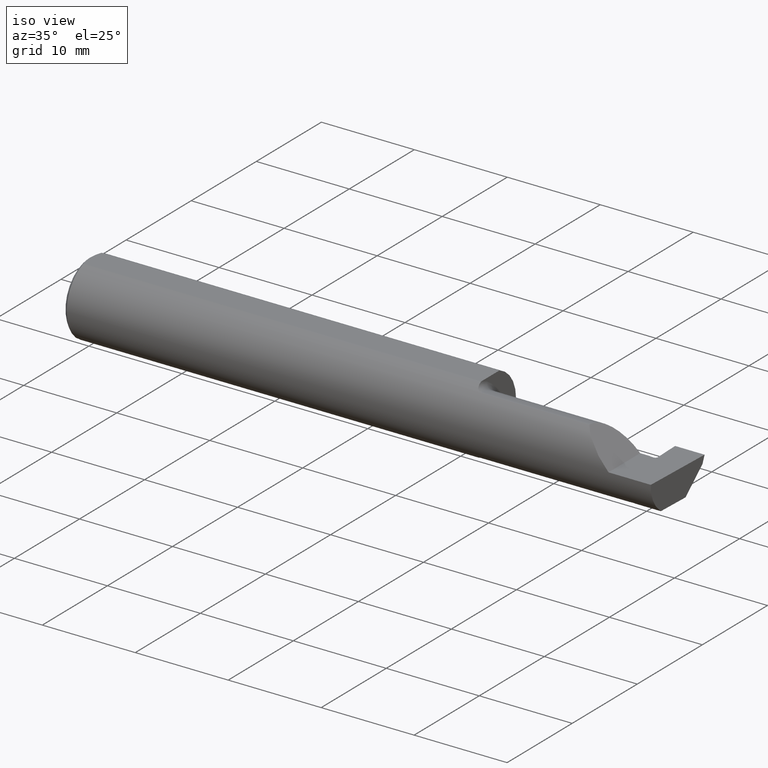
[diagram: clean part render]
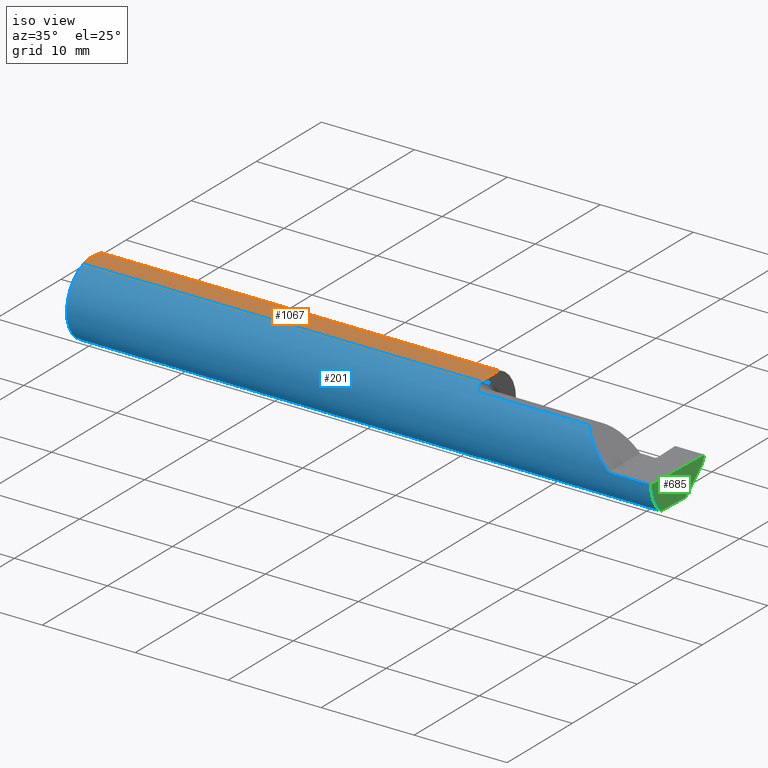
[diagram: same view with three faces highlighted in distinct colors, each labeled with its STEP entity id]
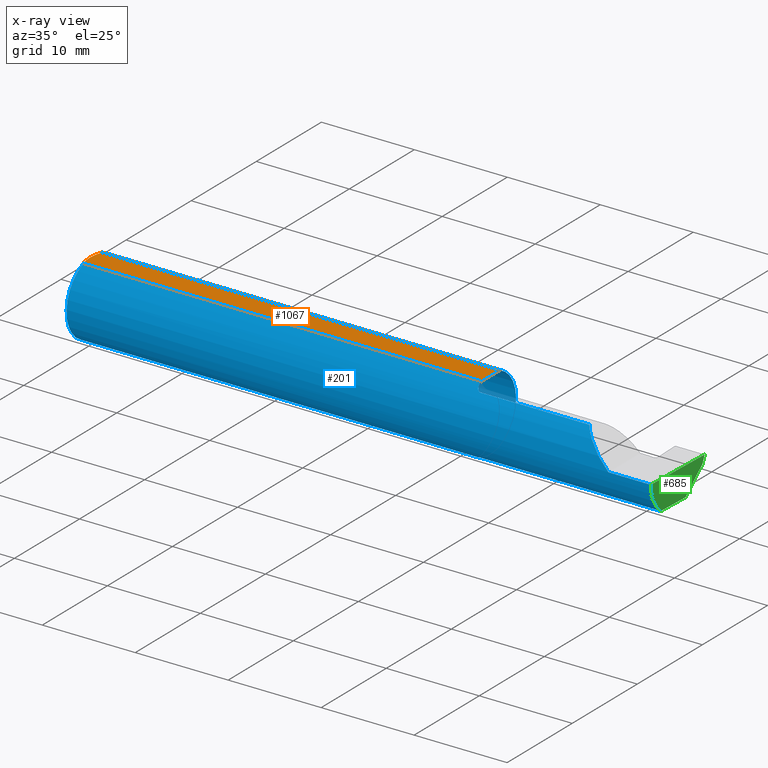
[diagram: x-ray of the same camera — body ghosted, the three highlighted faces saturated]
A machine part, iso view with three faces highlighted in distinct colors.
The next image is the same camera in x-ray (body ghosted, the three faces saturated) — at least one of them is partly hidden behind the body in this view.
Their STEP definitions:

[orange] entity #1067 — the highlighted planar face has unit normal (0, -0, 1).
#20 = DIRECTION ( 'NONE',  ( 1.000000000000000000, 0.000000000000000000, 0.000000000000000000 ) ) ;
#54 = EDGE_CURVE ( 'NONE', #752, #766, #463, .T. ) ;
#61 = DIRECTION ( 'NONE',  ( 0.000000000000000000, -0.000000000000000000, 1.000000000000000000 ) ) ;
#70 = CARTESIAN_POINT ( 'NONE',  ( 0.01499999999999999944, -0.05497272050753900657, 0.1460999999999999799 ) ) ;
#133 = EDGE_CURVE ( 'NONE', #995, #373, #276, .T. ) ;
#141 = CARTESIAN_POINT ( 'NONE',  ( 0.01499999999999999771, 0.05497272050753900657, 0.1460999999999999799 ) ) ;
#147 = B_SPLINE_CURVE_WITH_KNOTS ( 'NONE', 3,
 ( #141, #326, #396, #661, #666, #909 ),
 .UNSPECIFIED., .F., .F.,
 ( 4, 2, 4 ),
 ( 0.003294562426666346362, 0.003999440028384116178, 0.004704317630101885993 ),
 .UNSPECIFIED. ) ;
#149 = CARTESIAN_POINT ( 'NONE',  ( 1.699999999999999956, -0.05497272050753899270, 0.1460999999999999799 ) ) ;
#218 = EDGE_CURVE ( 'NONE', #647, #995, #147, .T. ) ;
#250 = DIRECTION ( 'NONE',  ( -1.000000000000000000, -0.000000000000000000, -0.000000000000000000 ) ) ;
#261 = CARTESIAN_POINT ( 'NONE',  ( 0.004999999999999897755, -0.009384304010803548590, 0.1460999999999999521 ) ) ;
#276 = B_SPLINE_CURVE_WITH_KNOTS ( 'NONE', 3,
 ( #1019, #261, #427, #1086, #594, #1010 ),
 .UNSPECIFIED., .F., .F.,
 ( 4, 2, 4 ),
 ( 0.004704317630101885993, 0.005408659995628783967, 0.006113002361155681942 ),
 .UNSPECIFIED. ) ;
#288 = ORIENTED_EDGE ( 'NONE', *, *, #481, .T. ) ;
#313 = DIRECTION ( 'NONE',  ( -0.000000000000000000, 1.000000000000000000, 0.000000000000000000 ) ) ;
#323 = VECTOR ( 'NONE', #313, 39.37007874015748143 ) ;
#326 = CARTESIAN_POINT ( 'NONE',  ( 0.01187749995209270472, 0.04610609988228752537, 0.1460999999999999799 ) ) ;
#339 = CARTESIAN_POINT ( 'NONE',  ( 1.699999999999999956, 0.05497272050753900657, 0.1460999999999999799 ) ) ;
#360 = EDGE_CURVE ( 'NONE', #766, #647, #834, .T. ) ;
#370 = VECTOR ( 'NONE', #250, 39.37007874015748143 ) ;
#373 = VERTEX_POINT ( 'NONE', #70 ) ;
#396 = CARTESIAN_POINT ( 'NONE',  ( 0.009371209226503902576, 0.03711161584255317364, 0.1461000000000000076 ) ) ;
#427 = CARTESIAN_POINT ( 'NONE',  ( 0.005910707775482238607, -0.01866948012536270504, 0.1461000000000000076 ) ) ;
#438 = ORIENTED_EDGE ( 'NONE', *, *, #133, .T. ) ;
#463 = LINE ( 'NONE', #801, #323 ) ;
#477 = CARTESIAN_POINT ( 'NONE',  ( 2.500000000000000000, -0.1561000000000000165, 0.1460999999999999799 ) ) ;
#481 = EDGE_CURVE ( 'NONE', #373, #752, #521, .T. ) ;
#500 = CARTESIAN_POINT ( 'NONE',  ( 0.000000000000000000, 0.05497272050753900657, 0.1460999999999999799 ) ) ;
#521 = LINE ( 'NONE', #768, #535 ) ;
#535 = VECTOR ( 'NONE', #20, 39.37007874015748143 ) ;
#543 = ORIENTED_EDGE ( 'NONE', *, *, #218, .T. ) ;
#554 = ORIENTED_EDGE ( 'NONE', *, *, #54, .T. ) ;
#562 = DIRECTION ( 'NONE',  ( 1.000000000000000000, 0.000000000000000000, -0.000000000000000000 ) ) ;
#594 = CARTESIAN_POINT ( 'NONE',  ( 0.01190375560897317594, -0.04618065518901644934, 0.1460999999999999799 ) ) ;
#638 = CARTESIAN_POINT ( 'NONE',  ( 0.004999999999999936787, 2.057148927093534050E-17, 0.1460999999999999799 ) ) ;
#647 = VERTEX_POINT ( 'NONE', #1089 ) ;
#661 = CARTESIAN_POINT ( 'NONE',  ( 0.005929349363808920914, 0.01879672308419500643, 0.1460999999999999799 ) ) ;
#666 = CARTESIAN_POINT ( 'NONE',  ( 0.004999999999999902960, 0.009391435229055663386, 0.1460999999999999799 ) ) ;
#752 = VERTEX_POINT ( 'NONE', #149 ) ;
#766 = VERTEX_POINT ( 'NONE', #339 ) ;
#768 = CARTESIAN_POINT ( 'NONE',  ( 0.000000000000000000, -0.05497272050753900657, 0.1460999999999999799 ) ) ;
#783 = AXIS2_PLACEMENT_3D ( 'NONE', #477, #61, #562 ) ;
#801 = CARTESIAN_POINT ( 'NONE',  ( 1.699999999999999956, -0.1561000000000000165, 0.1460999999999999799 ) ) ;
#817 = PLANE ( 'NONE',  #783 ) ;
#834 = LINE ( 'NONE', #500, #370 ) ;
#894 = ORIENTED_EDGE ( 'NONE', *, *, #360, .T. ) ;
#899 = FACE_OUTER_BOUND ( 'NONE', #963, .T. ) ;
#909 = CARTESIAN_POINT ( 'NONE',  ( 0.004999999999999936787, 2.057148927093534050E-17, 0.1460999999999999799 ) ) ;
#963 = EDGE_LOOP ( 'NONE', ( #288, #554, #894, #543, #438 ) ) ;
#995 = VERTEX_POINT ( 'NONE', #638 ) ;
#1010 = CARTESIAN_POINT ( 'NONE',  ( 0.01499999999999999944, -0.05497272050753900657, 0.1460999999999999799 ) ) ;
#1019 = CARTESIAN_POINT ( 'NONE',  ( 0.004999999999999936787, 2.057148927093534050E-17, 0.1460999999999999799 ) ) ;
#1067 = ADVANCED_FACE ( 'NONE', ( #899 ), #817, .T. ) ;
#1086 = CARTESIAN_POINT ( 'NONE',  ( 0.009356849677355947789, -0.03706298561014172849, 0.1460999999999999799 ) ) ;
#1089 = CARTESIAN_POINT ( 'NONE',  ( 0.01499999999999999771, 0.05497272050753900657, 0.1460999999999999799 ) ) ;

[blue] entity #201 — the highlighted cylindrical surface (partial cylindrical patch) has radius 3.9649 mm, axis along (-1, -0, -0).
#6 = CIRCLE ( 'NONE', #791, 0.1560999999999999888 ) ;
#8 = VERTEX_POINT ( 'NONE', #822 ) ;
#9 = DIRECTION ( 'NONE',  ( 1.000000000000000000, 0.000000000000000000, 0.000000000000000000 ) ) ;
#14 = DIRECTION ( 'NONE',  ( 1.000000000000000000, 0.000000000000000000, 0.000000000000000000 ) ) ;
#19 = CARTESIAN_POINT ( 'NONE',  ( 2.379446652605792245, -0.09360841750841730757, -0.1249186702281520484 ) ) ;
#20 = DIRECTION ( 'NONE',  ( 1.000000000000000000, 0.000000000000000000, 0.000000000000000000 ) ) ;
#21 = EDGE_CURVE ( 'NONE', #647, #307, #92, .T. ) ;
#23 = CARTESIAN_POINT ( 'NONE',  ( 2.374392721652005989, -0.09642141776642983164, -0.1227604424825125412 ) ) ;
#29 = CARTESIAN_POINT ( 'NONE',  ( 1.724999999999999867, -0.09360841750841744635, -0.1249186702281520206 ) ) ;
#52 = CARTESIAN_POINT ( 'NONE',  ( 2.488083711217045302, -0.09360841750841747411, -0.1249186702281520206 ) ) ;
#59 =( BOUNDED_CURVE ( )  B_SPLINE_CURVE ( 3, ( #861, #614, #607, #93 ),
 .UNSPECIFIED., .F., .F. ) 
 B_SPLINE_CURVE_WITH_KNOTS ( ( 4, 4 ),
 ( 4.712388980384689674, 5.640097190903853530 ),
 .UNSPECIFIED. ) 
 CURVE ( )  GEOMETRIC_REPRESENTATION_ITEM ( )  RATIONAL_B_SPLINE_CURVE ( ( 1.000000000000000000, 0.9295565493311498395, 0.9295565493311498395, 1.000000000000000000 ) ) 
 REPRESENTATION_ITEM ( '' )  );
#70 = CARTESIAN_POINT ( 'NONE',  ( 0.01499999999999999944, -0.05497272050753900657, 0.1460999999999999799 ) ) ;
#72 = VERTEX_POINT ( 'NONE', #379 ) ;
#73 = CARTESIAN_POINT ( 'NONE',  ( 2.489174561457560220, -0.1560999999999999888, 0.000000000000000000 ) ) ;
#83 = EDGE_CURVE ( 'NONE', #268, #734, #1087, .T. ) ;
#89 = B_SPLINE_CURVE_WITH_KNOTS ( 'NONE', 3,
 ( #19, #103, #597, #771, #23, #108 ),
 .UNSPECIFIED., .F., .F.,
 ( 4, 2, 4 ),
 ( 0.0003747943054115318020, 0.0004686591617424379244, 0.0005625240180733440468 ),
 .UNSPECIFIED. ) ;
#90 = ORIENTED_EDGE ( 'NONE', *, *, #493, .T. ) ;
#92 = CIRCLE ( 'NONE', #110, 0.1560999999999999888 ) ;
#93 = CARTESIAN_POINT ( 'NONE',  ( 2.185081329771848768, -0.09360841750841755737, 0.1249186702281519651 ) ) ;
#94 = CARTESIAN_POINT ( 'NONE',  ( 1.708312875394041974, -0.08466547365232431066, -0.1311808389156052246 ) ) ;
#102 = ORIENTED_EDGE ( 'NONE', *, *, #182, .F. ) ;
#103 = CARTESIAN_POINT ( 'NONE',  ( 2.378688910870780493, -0.09440078289830174108, -0.1243249073414868927 ) ) ;
#106 = CARTESIAN_POINT ( 'NONE',  ( 1.700847904676645150, -0.06780574120017837658, -0.1407631332654325218 ) ) ;
#108 = CARTESIAN_POINT ( 'NONE',  ( 2.373123753993312324, -0.09636026207879044847, -0.1228084276102695688 ) ) ;
#110 = AXIS2_PLACEMENT_3D ( 'NONE', #548, #400, #1057 ) ;
#115 = ORIENTED_EDGE ( 'NONE', *, *, #886, .F. ) ;
#117 = B_SPLINE_CURVE_WITH_KNOTS ( 'NONE', 3,
 ( #403, #154, #491, #271 ),
 .UNSPECIFIED., .F., .F.,
 ( 4, 4 ),
 ( 2.762686052850062009E-15, 7.527400343885615847E-05 ),
 .UNSPECIFIED. ) ;
#144 = B_SPLINE_CURVE_WITH_KNOTS ( 'NONE', 3,
 ( #1082, #498, #592, #325, #832, #413, #171, #167 ),
 .UNSPECIFIED., .F., .F.,
 ( 4, 2, 2, 4 ),
 ( 2.042507625484096645E-06, 0.0005263182385139293217, 0.0007884561039581517534, 0.001050593969402373968 ),
 .UNSPECIFIED. ) ;
#148 = ORIENTED_EDGE ( 'NONE', *, *, #765, .F. ) ;
#149 = CARTESIAN_POINT ( 'NONE',  ( 1.699999999999999956, -0.05497272050753899270, 0.1460999999999999799 ) ) ;
#154 = CARTESIAN_POINT ( 'NONE',  ( 2.358845075908522659, -0.09500150499830831152, -0.1238655998294315164 ) ) ;
#165 = VECTOR ( 'NONE', #410, 39.37007874015748143 ) ;
#166 = VERTEX_POINT ( 'NONE', #751 ) ;
#167 = CARTESIAN_POINT ( 'NONE',  ( 1.712810002172223234, -0.08909999999984939689, 0.1281733201569305314 ) ) ;
#169 = EDGE_CURVE ( 'NONE', #734, #319, #847, .T. ) ;
#170 = ORIENTED_EDGE ( 'NONE', *, *, #296, .F. ) ;
#171 = CARTESIAN_POINT ( 'NONE',  ( 1.710319203512566721, -0.08709887368156808696, 0.1295644080582772362 ) ) ;
#178 = CYLINDRICAL_SURFACE ( 'NONE', #852, 0.1560999999999999888 ) ;
#182 = EDGE_CURVE ( 'NONE', #691, #972, #496, .T. ) ;
#184 = EDGE_CURVE ( 'NONE', #329, #469, #1023, .T. ) ;
#187 = CARTESIAN_POINT ( 'NONE',  ( 1.724999999999999867, -0.09360841750841744635, -0.1249186702281520206 ) ) ;
#188 = CARTESIAN_POINT ( 'NONE',  ( 2.357920788017664027, -0.09360841750841733533, -0.1249186702281520484 ) ) ;
#197 = B_SPLINE_CURVE_WITH_KNOTS ( 'NONE', 3,
 ( #187, #440, #1038, #850 ),
 .UNSPECIFIED., .F., .F.,
 ( 4, 4 ),
 ( 1.958690481313001990E-07, 0.0003463854958010512543 ),
 .UNSPECIFIED. ) ;
#201 = ADVANCED_FACE ( 'NONE', ( #590 ), #178, .T. ) ;
#202 = ORIENTED_EDGE ( 'NONE', *, *, #83, .T. ) ;
#225 = CARTESIAN_POINT ( 'NONE',  ( 2.373123753993312324, -0.09636026207879044847, -0.1228084276102695688 ) ) ;
#227 = CARTESIAN_POINT ( 'NONE',  ( 2.487862172267039984, -0.1560999999999999888, -0.05008759057876777804 ) ) ;
#240 = VERTEX_POINT ( 'NONE', #242 ) ;
#242 = CARTESIAN_POINT ( 'NONE',  ( 1.700000000000000178, -0.05502817059483720158, 0.1460791239054557156 ) ) ;
#245 = DIRECTION ( 'NONE',  ( -1.000000000000000000, -0.000000000000000000, -0.000000000000000000 ) ) ;
#250 = DIRECTION ( 'NONE',  ( -1.000000000000000000, -0.000000000000000000, -0.000000000000000000 ) ) ;
#253 = DIRECTION ( 'NONE',  ( -1.000000000000000000, -0.000000000000000000, -0.000000000000000000 ) ) ;
#268 = VERTEX_POINT ( 'NONE', #583 ) ;
#271 = CARTESIAN_POINT ( 'NONE',  ( 2.357920788017664027, -0.09360841750841733533, -0.1249186702281520484 ) ) ;
#294 = EDGE_CURVE ( 'NONE', #72, #329, #117, .T. ) ;
#296 = EDGE_CURVE ( 'NONE', #611, #539, #395, .T. ) ;
#299 = ORIENTED_EDGE ( 'NONE', *, *, #169, .T. ) ;
#307 = VERTEX_POINT ( 'NONE', #1039 ) ;
#315 = DIRECTION ( 'NONE',  ( 0.000000000000000000, 0.000000000000000000, -1.000000000000000000 ) ) ;
#319 = VERTEX_POINT ( 'NONE', #858 ) ;
#325 = CARTESIAN_POINT ( 'NONE',  ( 1.703785422859118270, -0.07659497035394380315, 0.1360571150960168119 ) ) ;
#329 = VERTEX_POINT ( 'NONE', #188 ) ;
#339 = CARTESIAN_POINT ( 'NONE',  ( 1.699999999999999956, 0.05497272050753900657, 0.1460999999999999799 ) ) ;
#345 = CARTESIAN_POINT ( 'NONE',  ( 2.047499999999999876, -0.09360841750841747411, 0.1249186702281520206 ) ) ;
#353 = CARTESIAN_POINT ( 'NONE',  ( 1.712810002172223234, -0.08909999999984939689, 0.1281733201569305314 ) ) ;
#360 = EDGE_CURVE ( 'NONE', #766, #647, #834, .T. ) ;
#363 = CARTESIAN_POINT ( 'NONE',  ( 1.712810002172223234, -0.08909999999984939689, 0.1281733201569305314 ) ) ;
#370 = VECTOR ( 'NONE', #250, 39.37007874015748143 ) ;
#373 = VERTEX_POINT ( 'NONE', #70 ) ;
#379 = CARTESIAN_POINT ( 'NONE',  ( 2.359306785914736526, -0.09569152907656143514, -0.1233302122878384005 ) ) ;
#381 = CARTESIAN_POINT ( 'NONE',  ( 2.371972330778034710, -0.09630477112139824991, -0.1228519679706614465 ) ) ;
#387 = CARTESIAN_POINT ( 'NONE',  ( 1.700000000000000178, -0.05502817059483720158, -0.1460791239054557156 ) ) ;
#391 = CARTESIAN_POINT ( 'NONE',  ( 2.489174561457560220, -0.1560999999999999888, 0.000000000000000000 ) ) ;
#395 = B_SPLINE_CURVE_WITH_KNOTS ( 'NONE', 3,
 ( #863, #947, #94, #694, #609, #106, #779, #441 ),
 .UNSPECIFIED., .F., .F.,
 ( 4, 2, 2, 4 ),
 ( 0.0003463854958010512543, 0.0006107451645894995760, 0.0008751048333779480604, 0.001403824170954845246 ),
 .UNSPECIFIED. ) ;
#398 = EDGE_CURVE ( 'NONE', #268, #166, #1079, .T. ) ;
#400 = DIRECTION ( 'NONE',  ( -1.000000000000000000, -0.000000000000000000, -0.000000000000000000 ) ) ;
#403 = CARTESIAN_POINT ( 'NONE',  ( 2.359306785914736526, -0.09569152907656143514, -0.1233302122878384005 ) ) ;
#410 = DIRECTION ( 'NONE',  ( -1.000000000000000000, -0.000000000000000000, -0.000000000000000000 ) ) ;
#413 = CARTESIAN_POINT ( 'NONE',  ( 1.708314215045238837, -0.08466760255782143640, 0.1311795204669787829 ) ) ;
#425 = CIRCLE ( 'NONE', #475, 0.1560999999999999888 ) ;
#433 = CARTESIAN_POINT ( 'NONE',  ( 2.185081329771848768, -0.09360841750841755737, 0.1249186702281519651 ) ) ;
#440 = CARTESIAN_POINT ( 'NONE',  ( 1.720361275910303744, -0.09360841750841726594, -0.1249186702281521871 ) ) ;
#441 = CARTESIAN_POINT ( 'NONE',  ( 1.700000000000000178, -0.05502817059483720158, -0.1460791239054557156 ) ) ;
#444 = CARTESIAN_POINT ( 'NONE',  ( 1.720364775055372997, -0.09360841750841719655, 0.1249186702281522149 ) ) ;
#469 = VERTEX_POINT ( 'NONE', #29 ) ;
#471 = ORIENTED_EDGE ( 'NONE', *, *, #719, .F. ) ;
#475 = AXIS2_PLACEMENT_3D ( 'NONE', #581, #253, #1001 ) ;
#476 = ORIENTED_EDGE ( 'NONE', *, *, #294, .F. ) ;
#478 = EDGE_CURVE ( 'NONE', #469, #611, #197, .T. ) ;
#480 = CARTESIAN_POINT ( 'NONE',  ( 2.361033893141118334, -0.09577547543099411420, -0.1232650785719879988 ) ) ;
#481 = EDGE_CURVE ( 'NONE', #373, #752, #521, .T. ) ;
#485 = CARTESIAN_POINT ( 'NONE',  ( 1.712810002172886703, -0.08909999999996044695, -0.1281733201567834268 ) ) ;
#491 = CARTESIAN_POINT ( 'NONE',  ( 2.358383056854441051, -0.09430709230127319598, -0.1243951148493380315 ) ) ;
#493 = EDGE_CURVE ( 'NONE', #319, #972, #59, .T. ) ;
#496 = LINE ( 'NONE', #345, #1045 ) ;
#497 = VERTEX_POINT ( 'NONE', #363 ) ;
#498 = CARTESIAN_POINT ( 'NONE',  ( 1.699999999999999734, -0.06156212810510099109, 0.1436177747480845979 ) ) ;
#500 = CARTESIAN_POINT ( 'NONE',  ( 0.000000000000000000, 0.05497272050753900657, 0.1460999999999999799 ) ) ;
#514 = CARTESIAN_POINT ( 'NONE',  ( 1.699999999999999956, 0.000000000000000000, 0.000000000000000000 ) ) ;
#521 = LINE ( 'NONE', #768, #535 ) ;
#525 = B_SPLINE_CURVE_WITH_KNOTS ( 'NONE', 3,
 ( #225, #381, #986, #792, #969, #798, #812, #895, #480, #1043 ),
 .UNSPECIFIED., .F., .F.,
 ( 4, 3, 3, 4 ),
 ( 0.000000000000000000, 8.790291534909412869E-05, 0.0002197572917841408250, 0.0003516116715386320940 ),
 .UNSPECIFIED. ) ;
#535 = VECTOR ( 'NONE', #20, 39.37007874015748143 ) ;
#539 = VERTEX_POINT ( 'NONE', #387 ) ;
#548 = CARTESIAN_POINT ( 'NONE',  ( 0.01499999999999999944, 0.000000000000000000, 0.000000000000000000 ) ) ;
#556 = ORIENTED_EDGE ( 'NONE', *, *, #398, .F. ) ;
#563 = EDGE_CURVE ( 'NONE', #8, #72, #525, .T. ) ;
#579 = DIRECTION ( 'NONE',  ( -1.000000000000000000, -0.000000000000000000, -0.000000000000000000 ) ) ;
#581 = CARTESIAN_POINT ( 'NONE',  ( 0.01499999999999999944, 0.000000000000000000, 0.000000000000000000 ) ) ;
#583 = CARTESIAN_POINT ( 'NONE',  ( 2.488083711217045302, -0.09360841750841747411, -0.1249186702281520206 ) ) ;
#590 = FACE_OUTER_BOUND ( 'NONE', #731, .T. ) ;
#591 = ORIENTED_EDGE ( 'NONE', *, *, #923, .F. ) ;
#592 = CARTESIAN_POINT ( 'NONE',  ( 1.700844056398637782, -0.06777540567362916324, 0.1407770456887921240 ) ) ;
#593 = CARTESIAN_POINT ( 'NONE',  ( 2.047499999999999876, -0.09360841750841747411, -0.1249186702281520206 ) ) ;
#597 = CARTESIAN_POINT ( 'NONE',  ( 2.377800115396993874, -0.09510190349065003601, -0.1237871666001477550 ) ) ;
#607 = CARTESIAN_POINT ( 'NONE',  ( 2.215117332916550552, -0.1336908980339254205, 0.09488266708345004241 ) ) ;
#609 = CARTESIAN_POINT ( 'NONE',  ( 1.703804698179400834, -0.07664326672408296182, -0.1360300949145557547 ) ) ;
#611 = VERTEX_POINT ( 'NONE', #485 ) ;
#614 = CARTESIAN_POINT ( 'NONE',  ( 2.259912409421232837, -0.1560999999999999888, 0.05008759057876772947 ) ) ;
#647 = VERTEX_POINT ( 'NONE', #1089 ) ;
#659 = ORIENTED_EDGE ( 'NONE', *, *, #360, .F. ) ;
#691 = VERTEX_POINT ( 'NONE', #1073 ) ;
#692 = CARTESIAN_POINT ( 'NONE',  ( 1.716072683443918390, -0.09172126259464265241, 0.1263511429915042950 ) ) ;
#694 = CARTESIAN_POINT ( 'NONE',  ( 1.705057722617699945, -0.07943655142502253907, -0.1344116409581927463 ) ) ;
#719 = EDGE_CURVE ( 'NONE', #752, #240, #927, .T. ) ;
#725 = VECTOR ( 'NONE', #245, 39.37007874015748143 ) ;
#731 = EDGE_LOOP ( 'NONE', ( #556, #202, #299, #90, #102, #591, #1081, #471, #949, #148, #843, #659, #939, #170, #736, #1030, #476, #928, #115 ) ) ;
#734 = VERTEX_POINT ( 'NONE', #73 ) ;
#735 = B_SPLINE_CURVE_WITH_KNOTS ( 'NONE', 3,
 ( #353, #692, #444, #1028 ),
 .UNSPECIFIED., .F., .F.,
 ( 4, 4 ),
 ( 0.001050593969402373968, 0.001393966686689396706 ),
 .UNSPECIFIED. ) ;
#736 = ORIENTED_EDGE ( 'NONE', *, *, #478, .F. ) ;
#737 = DIRECTION ( 'NONE',  ( 1.000000000000000000, 0.000000000000000000, 0.000000000000000000 ) ) ;
#751 = CARTESIAN_POINT ( 'NONE',  ( 2.379446652605792245, -0.09360841750841730757, -0.1249186702281520484 ) ) ;
#752 = VERTEX_POINT ( 'NONE', #149 ) ;
#765 = EDGE_CURVE ( 'NONE', #307, #373, #425, .T. ) ;
#766 = VERTEX_POINT ( 'NONE', #339 ) ;
#768 = CARTESIAN_POINT ( 'NONE',  ( 0.000000000000000000, -0.05497272050753900657, 0.1460999999999999799 ) ) ;
#771 = CARTESIAN_POINT ( 'NONE',  ( 2.375639801973107978, -0.09613210443035560826, -0.1229888334777952119 ) ) ;
#777 = DIRECTION ( 'NONE',  ( 0.000000000000000000, 0.000000000000000000, -1.000000000000000000 ) ) ;
#779 = CARTESIAN_POINT ( 'NONE',  ( 1.699999999999998623, -0.06152246774674054869, -0.1436327148497734685 ) ) ;
#791 = AXIS2_PLACEMENT_3D ( 'NONE', #514, #9, #777 ) ;
#792 = CARTESIAN_POINT ( 'NONE',  ( 2.369669491292832664, -0.09619361144383517526, -0.1229390056792085545 ) ) ;
#798 = CARTESIAN_POINT ( 'NONE',  ( 2.366215240649324425, -0.09602664985820297261, -0.1230695078833414363 ) ) ;
#803 = EDGE_CURVE ( 'NONE', #240, #497, #144, .T. ) ;
#812 = CARTESIAN_POINT ( 'NONE',  ( 2.364488123115911833, -0.09594296939945114178, -0.1231347092529801596 ) ) ;
#822 = CARTESIAN_POINT ( 'NONE',  ( 2.373123753993312324, -0.09636026207879044847, -0.1228084276102695688 ) ) ;
#832 = CARTESIAN_POINT ( 'NONE',  ( 1.705056522840237898, -0.07943464720522720734, 0.1344128205797973930 ) ) ;
#834 = LINE ( 'NONE', #500, #370 ) ;
#843 = ORIENTED_EDGE ( 'NONE', *, *, #21, .F. ) ;
#847 = LINE ( 'NONE', #931, #165 ) ;
#850 = CARTESIAN_POINT ( 'NONE',  ( 1.712810002172886703, -0.08909999999996044695, -0.1281733201567834268 ) ) ;
#852 = AXIS2_PLACEMENT_3D ( 'NONE', #853, #579, #917 ) ;
#853 = CARTESIAN_POINT ( 'NONE',  ( 0.000000000000000000, 0.000000000000000000, 0.000000000000000000 ) ) ;
#858 = CARTESIAN_POINT ( 'NONE',  ( 2.310000000000000053, -0.1560999999999999888, 2.326828918379970872E-17 ) ) ;
#861 = CARTESIAN_POINT ( 'NONE',  ( 2.310000000000000053, -0.1560999999999999888, 2.326828918379970872E-17 ) ) ;
#863 = CARTESIAN_POINT ( 'NONE',  ( 1.712810002172886703, -0.08909999999996044695, -0.1281733201567834268 ) ) ;
#873 = EDGE_CURVE ( 'NONE', #539, #766, #6, .T. ) ;
#886 = EDGE_CURVE ( 'NONE', #166, #8, #89, .T. ) ;
#895 = CARTESIAN_POINT ( 'NONE',  ( 2.362761005539019354, -0.09585928893859264888, -0.1231999106242603059 ) ) ;
#902 = AXIS2_PLACEMENT_3D ( 'NONE', #907, #737, #315 ) ;
#907 = CARTESIAN_POINT ( 'NONE',  ( 1.699999999999999956, 0.000000000000000000, 0.000000000000000000 ) ) ;
#917 = DIRECTION ( 'NONE',  ( 0.000000000000000000, 0.000000000000000000, 1.000000000000000000 ) ) ;
#923 = EDGE_CURVE ( 'NONE', #497, #691, #735, .T. ) ;
#927 = CIRCLE ( 'NONE', #902, 0.1560999999999999888 ) ;
#928 = ORIENTED_EDGE ( 'NONE', *, *, #563, .F. ) ;
#931 = CARTESIAN_POINT ( 'NONE',  ( 3.749399456654646757E-32, -0.1560999999999999888, 3.061616997868384127E-16 ) ) ;
#938 = CARTESIAN_POINT ( 'NONE',  ( 2.047499999999999876, -0.09360841750841747411, -0.1249186702281520206 ) ) ;
#939 = ORIENTED_EDGE ( 'NONE', *, *, #873, .F. ) ;
#947 = CARTESIAN_POINT ( 'NONE',  ( 1.710315048287043949, -0.08709553534231924410, -0.1295667287130569112 ) ) ;
#949 = ORIENTED_EDGE ( 'NONE', *, *, #481, .F. ) ;
#969 = CARTESIAN_POINT ( 'NONE',  ( 2.367942363372598891, -0.09611019727074972263, -0.1230042730897456804 ) ) ;
#972 = VERTEX_POINT ( 'NONE', #433 ) ;
#986 = CARTESIAN_POINT ( 'NONE',  ( 2.370820909878544658, -0.09624922089121726310, -0.1228954940732334827 ) ) ;
#1001 = DIRECTION ( 'NONE',  ( 0.000000000000000000, 0.000000000000000000, 1.000000000000000000 ) ) ;
#1002 = VECTOR ( 'NONE', #1013, 39.37007874015748143 ) ;
#1013 = DIRECTION ( 'NONE',  ( -1.000000000000000000, -0.000000000000000000, -0.000000000000000000 ) ) ;
#1023 = LINE ( 'NONE', #938, #725 ) ;
#1028 = CARTESIAN_POINT ( 'NONE',  ( 1.724999999999999867, -0.09360841750841747411, 0.1249186702281520206 ) ) ;
#1030 = ORIENTED_EDGE ( 'NONE', *, *, #184, .F. ) ;
#1038 = CARTESIAN_POINT ( 'NONE',  ( 1.716077244708473115, -0.09172492714866078978, -0.1263485955677199346 ) ) ;
#1039 = CARTESIAN_POINT ( 'NONE',  ( 0.01499999999999999944, 0.000000000000000000, -0.1560999999999999888 ) ) ;
#1043 = CARTESIAN_POINT ( 'NONE',  ( 2.359306785914736526, -0.09569152907656143514, -0.1233302122878384005 ) ) ;
#1045 = VECTOR ( 'NONE', #14, 39.37007874015748143 ) ;
#1057 = DIRECTION ( 'NONE',  ( 0.000000000000000000, 0.000000000000000000, 1.000000000000000000 ) ) ;
#1062 = CARTESIAN_POINT ( 'NONE',  ( 2.487470999995594845, -0.1336908980339253650, -0.09488266708345007017 ) ) ;
#1073 = CARTESIAN_POINT ( 'NONE',  ( 1.724999999999999867, -0.09360841750841747411, 0.1249186702281520206 ) ) ;
#1079 = LINE ( 'NONE', #593, #1002 ) ;
#1081 = ORIENTED_EDGE ( 'NONE', *, *, #803, .F. ) ;
#1082 = CARTESIAN_POINT ( 'NONE',  ( 1.700000000000000178, -0.05502817059483720158, 0.1460791239054557156 ) ) ;
#1087 =( BOUNDED_CURVE ( )  B_SPLINE_CURVE ( 3, ( #52, #1062, #227, #391 ),
 .UNSPECIFIED., .F., .F. ) 
 B_SPLINE_CURVE_WITH_KNOTS ( ( 4, 4 ),
 ( 5.999185379311402500, 6.926893589830566356 ),
 .UNSPECIFIED. ) 
 CURVE ( )  GEOMETRIC_REPRESENTATION_ITEM ( )  RATIONAL_B_SPLINE_CURVE ( ( 1.000000000000000000, 0.9295565493311498395, 0.9295565493311498395, 1.000000000000000000 ) ) 
 REPRESENTATION_ITEM ( '' )  );
#1089 = CARTESIAN_POINT ( 'NONE',  ( 0.01499999999999999771, 0.05497272050753900657, 0.1460999999999999799 ) ) ;

[green] entity #685 — the highlighted planar face has unit normal (-0.999, 0.0349, 0.0262).
#16 = LINE ( 'NONE', #1021, #177 ) ;
#24 = DIRECTION ( 'NONE',  ( -0.03489949670249361396, -0.9993908270190959842, 1.869503356894093091E-16 ) ) ;
#26 = AXIS2_PLACEMENT_3D ( 'NONE', #407, #234, #1012 ) ;
#28 = LINE ( 'NONE', #856, #842 ) ;
#47 = CARTESIAN_POINT ( 'NONE',  ( 2.488239017632458250, -0.08909999999999999865, -0.1250000000000000000 ) ) ;
#52 = CARTESIAN_POINT ( 'NONE',  ( 2.488083711217045302, -0.09360841750841747411, -0.1249186702281520206 ) ) ;
#55 = VERTEX_POINT ( 'NONE', #47 ) ;
#73 = CARTESIAN_POINT ( 'NONE',  ( 2.489174561457560220, -0.1560999999999999888, 0.000000000000000000 ) ) ;
#83 = EDGE_CURVE ( 'NONE', #268, #734, #1087, .T. ) ;
#177 = VECTOR ( 'NONE', #520, 39.37007874015748143 ) ;
#213 = LINE ( 'NONE', #1069, #550 ) ;
#227 = CARTESIAN_POINT ( 'NONE',  ( 2.487862172267039984, -0.1560999999999999888, -0.05008759057876777804 ) ) ;
#234 = DIRECTION ( 'NONE',  ( -0.9990483607430195034, 0.03488753751660805813, 0.02617694830787321153 ) ) ;
#259 =( BOUNDED_CURVE ( )  B_SPLINE_CURVE ( 3, ( #589, #740, #1003, #1018 ),
 .UNSPECIFIED., .F., .T. ) 
 B_SPLINE_CURVE_WITH_KNOTS ( ( 4, 4 ),
 ( 0.8910128797774538034, 0.9270880441439166564 ),
 .UNSPECIFIED. ) 
 CURVE ( )  GEOMETRIC_REPRESENTATION_ITEM ( )  RATIONAL_B_SPLINE_CURVE ( ( 1.000000000000000000, 0.9998915514833921492, 0.9998915514833921492, 1.000000000000000000 ) ) 
 REPRESENTATION_ITEM ( '' )  );
#268 = VERTEX_POINT ( 'NONE', #583 ) ;
#351 = LINE ( 'NONE', #772, #663 ) ;
#375 = EDGE_CURVE ( 'NONE', #268, #55, #259, .T. ) ;
#384 = ORIENTED_EDGE ( 'NONE', *, *, #495, .F. ) ;
#391 = CARTESIAN_POINT ( 'NONE',  ( 2.489174561457560220, -0.1560999999999999888, 0.000000000000000000 ) ) ;
#407 = CARTESIAN_POINT ( 'NONE',  ( 2.500000000000000000, 0.1539000000000000090, 0.000000000000000000 ) ) ;
#432 = ORIENTED_EDGE ( 'NONE', *, *, #83, .F. ) ;
#462 = DIRECTION ( 'NONE',  ( -0.04317993108638500110, -0.7064472710512011977, -0.7064472710511984221 ) ) ;
#495 = EDGE_CURVE ( 'NONE', #918, #55, #351, .T. ) ;
#505 = PLANE ( 'NONE',  #26 ) ;
#507 = ORIENTED_EDGE ( 'NONE', *, *, #908, .T. ) ;
#520 = DIRECTION ( 'NONE',  ( -0.03489949670249362784, -0.9993908270190959842, 0.000000000000000000 ) ) ;
#529 = VERTEX_POINT ( 'NONE', #1059 ) ;
#550 = VECTOR ( 'NONE', #462, 39.37007874015748854 ) ;
#583 = CARTESIAN_POINT ( 'NONE',  ( 2.488083711217045302, -0.09360841750841747411, -0.1249186702281520206 ) ) ;
#589 = CARTESIAN_POINT ( 'NONE',  ( 2.488083711217045302, -0.09360841750841747411, -0.1249186702281520206 ) ) ;
#605 = EDGE_LOOP ( 'NONE', ( #804, #384, #898, #776, #507, #432 ) ) ;
#616 = VERTEX_POINT ( 'NONE', #838 ) ;
#663 = VECTOR ( 'NONE', #24, 39.37007874015748143 ) ;
#674 = FACE_OUTER_BOUND ( 'NONE', #605, .T. ) ;
#685 = ADVANCED_FACE ( 'NONE', ( #674 ), #505, .F. ) ;
#734 = VERTEX_POINT ( 'NONE', #73 ) ;
#740 = CARTESIAN_POINT ( 'NONE',  ( 2.488134749845124283, -0.09210618219364770376, -0.1249728871357007470 ) ) ;
#772 = CARTESIAN_POINT ( 'NONE',  ( 2.494622100805672815, 0.09368758647412679663, -0.1250000000000000278 ) ) ;
#776 = ORIENTED_EDGE ( 'NONE', *, *, #956, .F. ) ;
#804 = ORIENTED_EDGE ( 'NONE', *, *, #375, .T. ) ;
#838 = CARTESIAN_POINT ( 'NONE',  ( 2.500000000000000000, 0.1539000000000000090, 0.000000000000000000 ) ) ;
#842 = VECTOR ( 'NONE', #1031, 39.37007874015748143 ) ;
#856 = CARTESIAN_POINT ( 'NONE',  ( 2.499739070958876930, 0.1515496386352691571, -0.006825945041920238043 ) ) ;
#898 = ORIENTED_EDGE ( 'NONE', *, *, #1084, .F. ) ;
#908 = EDGE_CURVE ( 'NONE', #616, #734, #16, .T. ) ;
#918 = VERTEX_POINT ( 'NONE', #933 ) ;
#933 = CARTESIAN_POINT ( 'NONE',  ( 2.493069462545114856, 0.04922584398801999050, -0.1250000000000000000 ) ) ;
#956 = EDGE_CURVE ( 'NONE', #616, #529, #28, .T. ) ;
#1003 = CARTESIAN_POINT ( 'NONE',  ( 2.488186524265120880, -0.09060321336276831727, -0.1250000000000000278 ) ) ;
#1012 = DIRECTION ( 'NONE',  ( -0.03489949670249362090, -0.9993908270190959842, 0.000000000000000000 ) ) ;
#1018 = CARTESIAN_POINT ( 'NONE',  ( 2.488239017632458250, -0.08909999999999999865, -0.1250000000000000000 ) ) ;
#1021 = CARTESIAN_POINT ( 'NONE',  ( 2.500000000000000000, 0.1539000000000000090, 0.000000000000000000 ) ) ;
#1031 = DIRECTION ( 'NONE',  ( -0.03611987272424844325, -0.3253557096773698198, -0.9449015911589518923 ) ) ;
#1059 = CARTESIAN_POINT ( 'NONE',  ( 2.498814991883886893, 0.1432258439880203515, -0.03099999999999999631 ) ) ;
#1062 = CARTESIAN_POINT ( 'NONE',  ( 2.487470999995594845, -0.1336908980339253650, -0.09488266708345007017 ) ) ;
#1069 = CARTESIAN_POINT ( 'NONE',  ( 2.498444300049436073, 0.1371611229877749139, -0.03706472100024540278 ) ) ;
#1084 = EDGE_CURVE ( 'NONE', #529, #918, #213, .T. ) ;
#1087 =( BOUNDED_CURVE ( )  B_SPLINE_CURVE ( 3, ( #52, #1062, #227, #391 ),
 .UNSPECIFIED., .F., .F. ) 
 B_SPLINE_CURVE_WITH_KNOTS ( ( 4, 4 ),
 ( 5.999185379311402500, 6.926893589830566356 ),
 .UNSPECIFIED. ) 
 CURVE ( )  GEOMETRIC_REPRESENTATION_ITEM ( )  RATIONAL_B_SPLINE_CURVE ( ( 1.000000000000000000, 0.9295565493311498395, 0.9295565493311498395, 1.000000000000000000 ) ) 
 REPRESENTATION_ITEM ( '' )  );